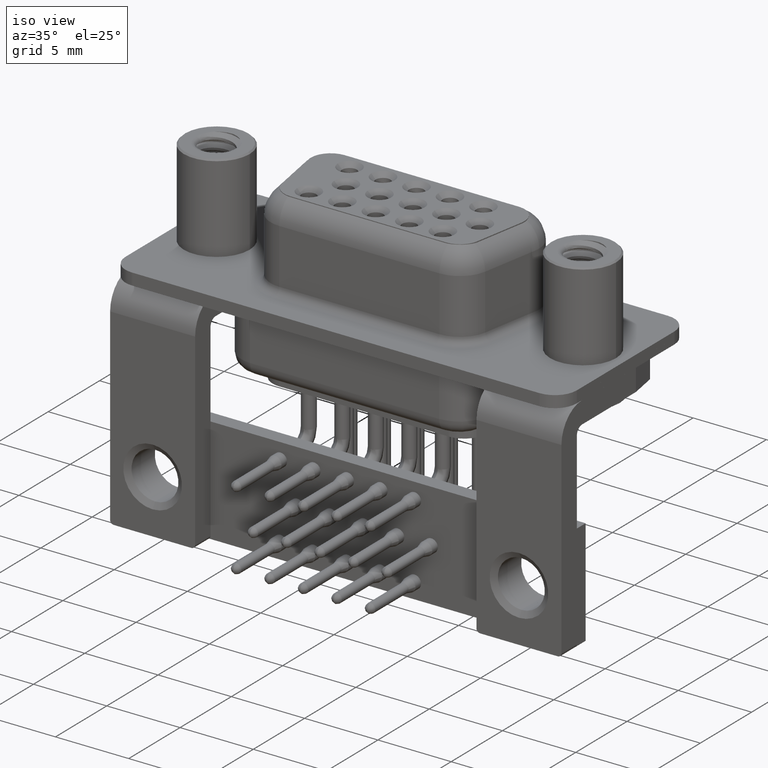
[diagram: clean part render]
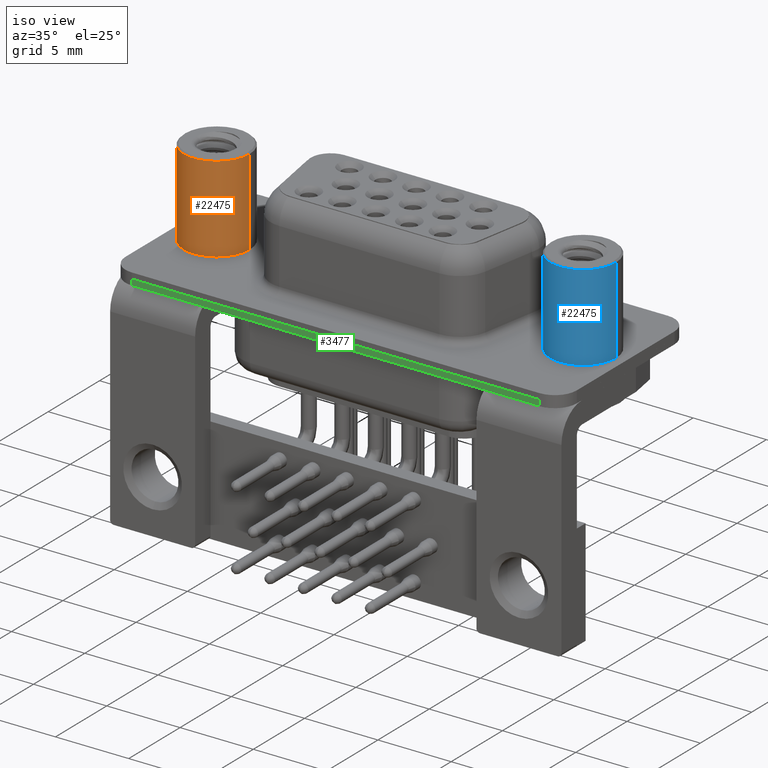
[diagram: same view with three faces highlighted in distinct colors, each labeled with its STEP entity id]
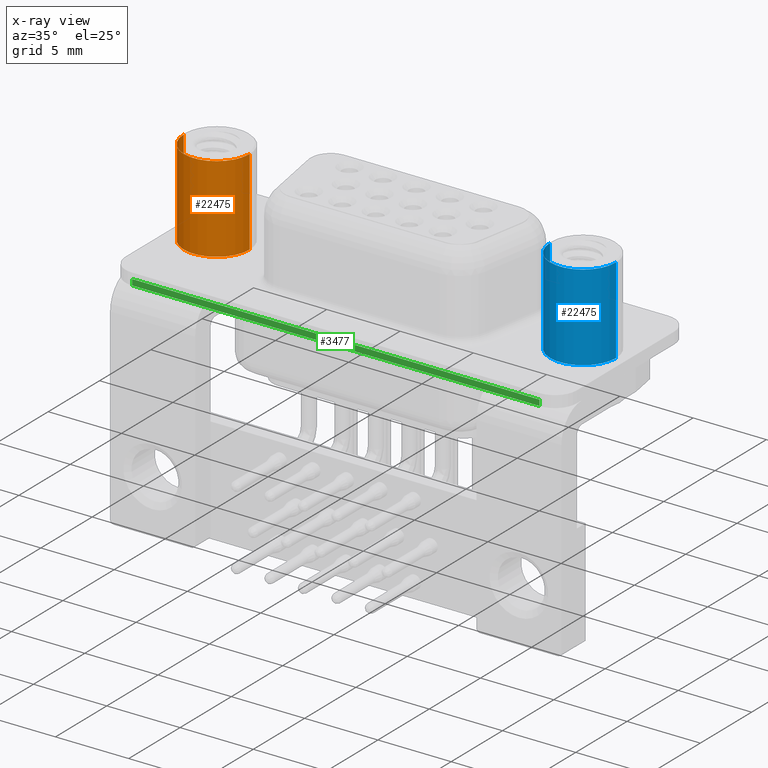
[diagram: x-ray of the same camera — body ghosted, the three highlighted faces saturated]
A machine part, iso view with three faces highlighted in distinct colors.
The next image is the same camera in x-ray (body ghosted, the three faces saturated) — at least one of them is partly hidden behind the body in this view.
Their STEP definitions:

[orange] entity #22475 — the highlighted cylindrical surface (partial cylindrical patch) has radius 2.25 mm, axis along (0, 0, 1).
#107 = CIRCLE ( 'NONE', #2244, 2.250000000000000000 ) ;
#297 = ORIENTED_EDGE ( 'NONE', *, *, #2302, .T. ) ;
#1260 = EDGE_LOOP ( 'NONE', ( #16855, #18757, #297, #22087 ) ) ;
#2244 = AXIS2_PLACEMENT_3D ( 'NONE', #6879, #19225, #8659 ) ;
#2302 = EDGE_CURVE ( 'NONE', #19381, #5215, #3250, .T. ) ;
#3250 = LINE ( 'NONE', #5322, #7379 ) ;
#4989 = CARTESIAN_POINT ( 'NONE',  ( -2.250000000000000000, 2.755455298081544300E-016, 0.5806333143474410300 ) ) ;
#5215 = VERTEX_POINT ( 'NONE', #19959 ) ;
#5322 = CARTESIAN_POINT ( 'NONE',  ( 2.250000000000000000, 0.0000000000000000000, 0.5806333143474410300 ) ) ;
#6879 = CARTESIAN_POINT ( 'NONE',  ( 0.0000000000000000000, 0.0000000000000000000, 6.299999999999999800 ) ) ;
#7101 = DIRECTION ( 'NONE',  ( 1.000000000000000000, 0.0000000000000000000, 0.0000000000000000000 ) ) ;
#7379 = VECTOR ( 'NONE', #13942, 1000.000000000000000 ) ;
#8659 = DIRECTION ( 'NONE',  ( 1.000000000000000000, 0.0000000000000000000, 0.0000000000000000000 ) ) ;
#8848 = CIRCLE ( 'NONE', #21971, 2.250000000000000000 ) ;
#9490 = CARTESIAN_POINT ( 'NONE',  ( 0.0000000000000000000, 0.0000000000000000000, 0.4000000000000001900 ) ) ;
#10070 = CARTESIAN_POINT ( 'NONE',  ( 2.250000000000000000, 0.0000000000000000000, 0.4000000000000001900 ) ) ;
#10296 = DIRECTION ( 'NONE',  ( -0.0000000000000000000, -0.0000000000000000000, 1.000000000000000000 ) ) ;
#10697 = EDGE_CURVE ( 'NONE', #15671, #15253, #11158, .T. ) ;
#11158 = LINE ( 'NONE', #4989, #15313 ) ;
#11268 = DIRECTION ( 'NONE',  ( 1.000000000000000000, 0.0000000000000000000, 0.0000000000000000000 ) ) ;
#13268 = EDGE_CURVE ( 'NONE', #15671, #19381, #8848, .T. ) ;
#13942 = DIRECTION ( 'NONE',  ( -0.0000000000000000000, -0.0000000000000000000, 1.000000000000000000 ) ) ;
#14086 = AXIS2_PLACEMENT_3D ( 'NONE', #15917, #19461, #7101 ) ;
#15253 = VERTEX_POINT ( 'NONE', #18484 ) ;
#15313 = VECTOR ( 'NONE', #10296, 1000.000000000000000 ) ;
#15671 = VERTEX_POINT ( 'NONE', #17983 ) ;
#15917 = CARTESIAN_POINT ( 'NONE',  ( 0.0000000000000000000, 0.0000000000000000000, 0.5806333143474410300 ) ) ;
#16671 = CYLINDRICAL_SURFACE ( 'NONE', #14086, 2.250000000000000000 ) ;
#16855 = ORIENTED_EDGE ( 'NONE', *, *, #10697, .F. ) ;
#17983 = CARTESIAN_POINT ( 'NONE',  ( -2.250000000000000000, 2.755455298081544800E-016, 0.4000000000000001900 ) ) ;
#18484 = CARTESIAN_POINT ( 'NONE',  ( -2.250000000000000000, 0.0000000000000000000, 6.299999999999999800 ) ) ;
#18757 = ORIENTED_EDGE ( 'NONE', *, *, #13268, .T. ) ;
#19225 = DIRECTION ( 'NONE',  ( -0.0000000000000000000, -0.0000000000000000000, 1.000000000000000000 ) ) ;
#19381 = VERTEX_POINT ( 'NONE', #10070 ) ;
#19461 = DIRECTION ( 'NONE',  ( -0.0000000000000000000, -0.0000000000000000000, 1.000000000000000000 ) ) ;
#19959 = CARTESIAN_POINT ( 'NONE',  ( 2.250000000000000000, 2.755455298081544300E-016, 6.299999999999999800 ) ) ;
#21855 = DIRECTION ( 'NONE',  ( -0.0000000000000000000, -0.0000000000000000000, 1.000000000000000000 ) ) ;
#21922 = FACE_OUTER_BOUND ( 'NONE', #1260, .T. ) ;
#21971 = AXIS2_PLACEMENT_3D ( 'NONE', #9490, #21855, #11268 ) ;
#22087 = ORIENTED_EDGE ( 'NONE', *, *, #22365, .F. ) ;
#22365 = EDGE_CURVE ( 'NONE', #15253, #5215, #107, .T. ) ;
#22475 = ADVANCED_FACE ( 'NONE', ( #21922 ), #16671, .T. ) ;

[blue] entity #22475 — the highlighted cylindrical surface (partial cylindrical patch) has radius 2.25 mm, axis along (0, 0, 1).
#107 = CIRCLE ( 'NONE', #2244, 2.250000000000000000 ) ;
#297 = ORIENTED_EDGE ( 'NONE', *, *, #2302, .T. ) ;
#1260 = EDGE_LOOP ( 'NONE', ( #16855, #18757, #297, #22087 ) ) ;
#2244 = AXIS2_PLACEMENT_3D ( 'NONE', #6879, #19225, #8659 ) ;
#2302 = EDGE_CURVE ( 'NONE', #19381, #5215, #3250, .T. ) ;
#3250 = LINE ( 'NONE', #5322, #7379 ) ;
#4989 = CARTESIAN_POINT ( 'NONE',  ( -2.250000000000000000, 2.755455298081544300E-016, 0.5806333143474410300 ) ) ;
#5215 = VERTEX_POINT ( 'NONE', #19959 ) ;
#5322 = CARTESIAN_POINT ( 'NONE',  ( 2.250000000000000000, 0.0000000000000000000, 0.5806333143474410300 ) ) ;
#6879 = CARTESIAN_POINT ( 'NONE',  ( 0.0000000000000000000, 0.0000000000000000000, 6.299999999999999800 ) ) ;
#7101 = DIRECTION ( 'NONE',  ( 1.000000000000000000, 0.0000000000000000000, 0.0000000000000000000 ) ) ;
#7379 = VECTOR ( 'NONE', #13942, 1000.000000000000000 ) ;
#8659 = DIRECTION ( 'NONE',  ( 1.000000000000000000, 0.0000000000000000000, 0.0000000000000000000 ) ) ;
#8848 = CIRCLE ( 'NONE', #21971, 2.250000000000000000 ) ;
#9490 = CARTESIAN_POINT ( 'NONE',  ( 0.0000000000000000000, 0.0000000000000000000, 0.4000000000000001900 ) ) ;
#10070 = CARTESIAN_POINT ( 'NONE',  ( 2.250000000000000000, 0.0000000000000000000, 0.4000000000000001900 ) ) ;
#10296 = DIRECTION ( 'NONE',  ( -0.0000000000000000000, -0.0000000000000000000, 1.000000000000000000 ) ) ;
#10697 = EDGE_CURVE ( 'NONE', #15671, #15253, #11158, .T. ) ;
#11158 = LINE ( 'NONE', #4989, #15313 ) ;
#11268 = DIRECTION ( 'NONE',  ( 1.000000000000000000, 0.0000000000000000000, 0.0000000000000000000 ) ) ;
#13268 = EDGE_CURVE ( 'NONE', #15671, #19381, #8848, .T. ) ;
#13942 = DIRECTION ( 'NONE',  ( -0.0000000000000000000, -0.0000000000000000000, 1.000000000000000000 ) ) ;
#14086 = AXIS2_PLACEMENT_3D ( 'NONE', #15917, #19461, #7101 ) ;
#15253 = VERTEX_POINT ( 'NONE', #18484 ) ;
#15313 = VECTOR ( 'NONE', #10296, 1000.000000000000000 ) ;
#15671 = VERTEX_POINT ( 'NONE', #17983 ) ;
#15917 = CARTESIAN_POINT ( 'NONE',  ( 0.0000000000000000000, 0.0000000000000000000, 0.5806333143474410300 ) ) ;
#16671 = CYLINDRICAL_SURFACE ( 'NONE', #14086, 2.250000000000000000 ) ;
#16855 = ORIENTED_EDGE ( 'NONE', *, *, #10697, .F. ) ;
#17983 = CARTESIAN_POINT ( 'NONE',  ( -2.250000000000000000, 2.755455298081544800E-016, 0.4000000000000001900 ) ) ;
#18484 = CARTESIAN_POINT ( 'NONE',  ( -2.250000000000000000, 0.0000000000000000000, 6.299999999999999800 ) ) ;
#18757 = ORIENTED_EDGE ( 'NONE', *, *, #13268, .T. ) ;
#19225 = DIRECTION ( 'NONE',  ( -0.0000000000000000000, -0.0000000000000000000, 1.000000000000000000 ) ) ;
#19381 = VERTEX_POINT ( 'NONE', #10070 ) ;
#19461 = DIRECTION ( 'NONE',  ( -0.0000000000000000000, -0.0000000000000000000, 1.000000000000000000 ) ) ;
#19959 = CARTESIAN_POINT ( 'NONE',  ( 2.250000000000000000, 2.755455298081544300E-016, 6.299999999999999800 ) ) ;
#21855 = DIRECTION ( 'NONE',  ( -0.0000000000000000000, -0.0000000000000000000, 1.000000000000000000 ) ) ;
#21922 = FACE_OUTER_BOUND ( 'NONE', #1260, .T. ) ;
#21971 = AXIS2_PLACEMENT_3D ( 'NONE', #9490, #21855, #11268 ) ;
#22087 = ORIENTED_EDGE ( 'NONE', *, *, #22365, .F. ) ;
#22365 = EDGE_CURVE ( 'NONE', #15253, #5215, #107, .T. ) ;
#22475 = ADVANCED_FACE ( 'NONE', ( #21922 ), #16671, .T. ) ;

[green] entity #3477 — the highlighted planar face has unit normal (0, -1, 0).
#822 = AXIS2_PLACEMENT_3D ( 'NONE', #3457, #3377, #3150 ) ;
#1256 = DIRECTION ( 'NONE',  ( 1.000000000000000000, 9.360018755270541000E-017, -0.0000000000000000000 ) ) ;
#1541 = FACE_OUTER_BOUND ( 'NONE', #19788, .T. ) ;
#1630 = EDGE_CURVE ( 'NONE', #19539, #14575, #18473, .T. ) ;
#2194 = EDGE_CURVE ( 'NONE', #19539, #20304, #14300, .T. ) ;
#2689 = CARTESIAN_POINT ( 'NONE',  ( 26.40000000000000600, -6.250000000000001800, -0.4000000000000000200 ) ) ;
#2998 = CARTESIAN_POINT ( 'NONE',  ( -1.399999999999998400, -6.250000000000004400, 0.0000000000000000000 ) ) ;
#3150 = DIRECTION ( 'NONE',  ( 1.000000000000000000, 9.360018755270541000E-017, 0.0000000000000000000 ) ) ;
#3377 = DIRECTION ( 'NONE',  ( 9.360018755270541000E-017, -1.000000000000000000, 0.0000000000000000000 ) ) ;
#3457 = CARTESIAN_POINT ( 'NONE',  ( 26.40000000000000600, -6.250000000000001800, -0.4000000000000000200 ) ) ;
#3477 = ADVANCED_FACE ( 'NONE', ( #1541 ), #7224, .T. ) ;
#4415 = VECTOR ( 'NONE', #15844, 1000.000000000000000 ) ;
#4480 = LINE ( 'NONE', #11845, #17972 ) ;
#5993 = VERTEX_POINT ( 'NONE', #19994 ) ;
#6047 = CARTESIAN_POINT ( 'NONE',  ( 26.40000000000000600, -6.250000000000001800, -0.4000000000000000200 ) ) ;
#7224 = PLANE ( 'NONE',  #822 ) ;
#8647 = VECTOR ( 'NONE', #13129, 1000.000000000000000 ) ;
#9044 = EDGE_CURVE ( 'NONE', #20304, #5993, #4480, .T. ) ;
#9430 = ORIENTED_EDGE ( 'NONE', *, *, #1630, .T. ) ;
#11008 = ORIENTED_EDGE ( 'NONE', *, *, #9044, .F. ) ;
#11160 = EDGE_CURVE ( 'NONE', #14575, #5993, #18025, .T. ) ;
#11845 = CARTESIAN_POINT ( 'NONE',  ( 26.40000000000000600, -6.250000000000001800, 0.0000000000000000000 ) ) ;
#13129 = DIRECTION ( 'NONE',  ( 0.0000000000000000000, 0.0000000000000000000, 1.000000000000000000 ) ) ;
#13715 = ORIENTED_EDGE ( 'NONE', *, *, #11160, .T. ) ;
#14300 = LINE ( 'NONE', #18250, #18449 ) ;
#14575 = VERTEX_POINT ( 'NONE', #2689 ) ;
#15767 = CARTESIAN_POINT ( 'NONE',  ( 26.40000000000000600, -6.250000000000001800, -0.4000000000000000200 ) ) ;
#15844 = DIRECTION ( 'NONE',  ( 1.000000000000000000, 9.360018755270541000E-017, -0.0000000000000000000 ) ) ;
#17611 = CARTESIAN_POINT ( 'NONE',  ( -1.399999999999998400, -6.250000000000004400, -0.4000000000000000200 ) ) ;
#17972 = VECTOR ( 'NONE', #1256, 1000.000000000000000 ) ;
#18025 = LINE ( 'NONE', #6047, #8647 ) ;
#18250 = CARTESIAN_POINT ( 'NONE',  ( -1.399999999999998400, -6.250000000000004400, -0.4000000000000000200 ) ) ;
#18277 = DIRECTION ( 'NONE',  ( 0.0000000000000000000, 0.0000000000000000000, 1.000000000000000000 ) ) ;
#18449 = VECTOR ( 'NONE', #18277, 1000.000000000000000 ) ;
#18473 = LINE ( 'NONE', #15767, #4415 ) ;
#19539 = VERTEX_POINT ( 'NONE', #17611 ) ;
#19788 = EDGE_LOOP ( 'NONE', ( #11008, #20364, #9430, #13715 ) ) ;
#19994 = CARTESIAN_POINT ( 'NONE',  ( 26.40000000000000600, -6.250000000000001800, 0.0000000000000000000 ) ) ;
#20304 = VERTEX_POINT ( 'NONE', #2998 ) ;
#20364 = ORIENTED_EDGE ( 'NONE', *, *, #2194, .F. ) ;